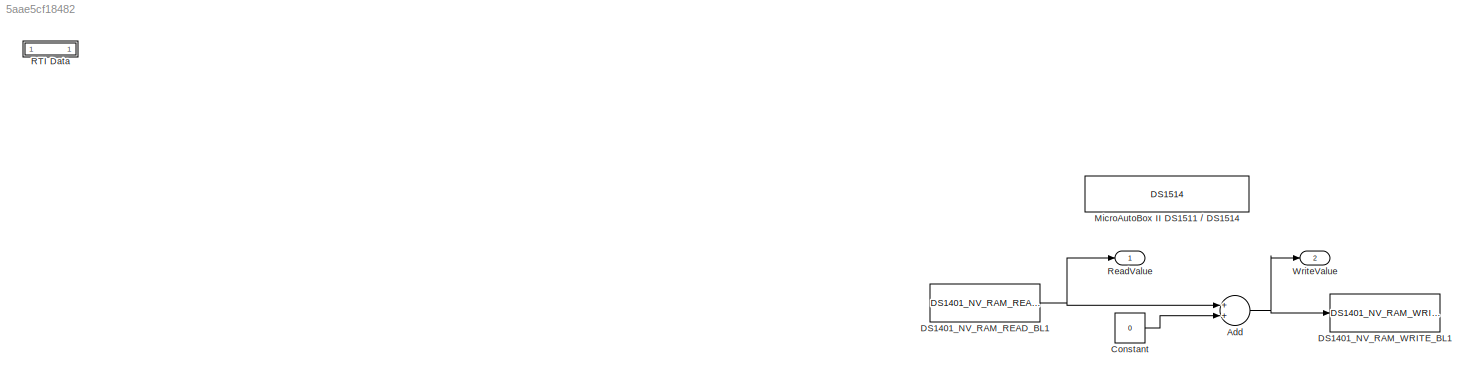
MODEL slx_5aae5cf18482
KIND model
CONFIG AbsTol = auto
CONFIG FixedStep = 0.001
CONFIG MaxStep = auto
CONFIG MinStep = auto
CONFIG PostLoadFcn = , if any(exist('dsrtsu_mdlpostloadfcn', 'file') == [2, 3, 6]), try dsrtsu_mdlpostloadfcn('Execute', bdroot); catch fprintf('Error in PostLoadFcn (dsrtsu_mdlpostloadfcn) for model "%s":\n %s\n', bdroot, lasterr); end, end, \n
CONFIG RelTol = 1e-3
CONFIG SampleTimeConstraint = Unconstrained
CONFIG Solver = ode1
CONFIG SolverMode = Auto
CONFIG SolverName = ode1
CONFIG StartTime = 0.0
CONFIG StopTime = Inf
BLOCK [Sum] Add
  InputSameDT = off
  OutDataTypeStr = int8
  Ports = [2, 1]
  SaturateOnIntegerOverflow = off
BLOCK [Constant] Constant
  Value = 0
BLOCK [Reference] DS1401_NV_RAM_READ_BL1  REF=rti1401lib_II_base/DS1401_NV_RAM_READ_BL1
  DSProperties = struct('RTI',struct('Version',uint32(1),'BlockType',struct('isSLSource',uint8(1),'isSLSink',uint8(0),'isHWSource',uint8(1),'isHWSink',uint8(0),'isSetup',uint8(0),'isInline',uint8(1),'isNonInline',uint8(0),'isInterrupt',uint8(0),'isChannelwise',uint8(0)),'IOBoardType',{{'DS1401','BASE','II'}},'UnitType','NVRAM','Identifier','NVRAMREAD','DialogType','ML','BlockSet','NONE','SlaveProcessor','NONE'))
  Ports = [0, 1]
  RTIBlockInterface = struct('OutputPortsWidth',int32(1),'OutputPortsActive',1,'OutputPortsDataType',{{'SS_INT8'}},'OutputPortsName',{{[' ']}},'BlockDisplay',{{['Read from\nnon-volatile RAM'],'center'}},'IconTransparency','on','InitLevel',3,'SampleTime',{{1}},'DialogFcn','rti1401baseiinvramreadgui','BlockName',struct('Token',{{'DS1401_NV_RAM_READ_BL1'}}))
  RTIBlockParaDefault = struct('DataType',8,'RAMAddress',0,'SampleTime',-1,'TLCFileName','rti1401base_II_nvram_read')
  RTIBlockParameters = struct('DataType',{{1,'OFF',[1 8]}},'RAMAddress',{{'1','OFF',[0 4095]}},'SampleTime',{{'1','OFF',[-1 inf]}},'TLCFileName',{{'rti1401base_II_nvram_read','OFF',[]}})
  RTISFcnParameters = struct('DataType','int16','RAMAddress','uint32','TLCFileName','char')
  SourceBlock = rti1401lib_II_base/DS1401_NV_RAM_READ_BL1
  SourceType = RTI
BLOCK [Reference] DS1401_NV_RAM_WRITE_BL1  REF=rti1401lib_II_base/DS1401_NV_RAM_WRITE_BL1
  DSProperties = struct('RTI',struct('Version',uint32(1),'BlockType',struct('isSLSource',uint8(0),'isSLSink',uint8(1),'isHWSource',uint8(0),'isHWSink',uint8(1),'isSetup',uint8(0),'isInline',uint8(1),'isNonInline',uint8(0),'isInterrupt',uint8(0),'isChannelwise',uint8(0)),'IOBoardType',{{'DS1401','BASE','II'}},'UnitType','NVRAM','Identifier','NVRAMWRITE','DialogType','ML','BlockSet','NONE','SlaveProcessor','NONE'))
  Ports = [1]
  RTIBlockInterface = struct('InputPortsWidth',int32(1),'InputPortsActive',1,'InputPortsDataType',{{'SS_INT8'}},'InputPortsName',{{[' ']}},'BlockDisplay',{{['Write to\nnon-volatile RAM'],'center'}},'IconTransparency','on','InitLevel',3,'SampleTime',{{1}},'DialogFcn','rti1401baseiinvramwritegui','BlockName',struct('Token',{{'DS1401_NV_RAM_WRITE_BL1'}}))
  RTIBlockParaDefault = struct('DataType',8,'RAMAddress',0,'SampleTime',-1,'TLCFileName','rti1401base_II_nvram_write')
  RTIBlockParameters = struct('DataType',{{1,'OFF',[1 8]}},'RAMAddress',{{'1','OFF',[0 4095]}},'SampleTime',{{'1','OFF',[-1 inf]}},'TLCFileName',{{'rti1401base_II_nvram_write','OFF',[]}})
  RTISFcnParameters = struct('DataType','int16','RAMAddress','uint32','TLCFileName','char')
  SourceBlock = rti1401lib_II_base/DS1401_NV_RAM_WRITE_BL1
  SourceType = RTI
BLOCK [Reference] MicroAutoBox II DS1511 // DS1514  REF=rtilib1401/MicroAutoBox II DS1511 // DS1514
  FunctionWithSeparateData = off
  GeneratePreprocessorConditionals = off
  Ports = []
  ShowPortLabels = FromPortIcon
  SourceBlock = rtilib1401/MicroAutoBox II DS1511 // DS1514
  SourceType = DSBUTTON
  SystemSampleTime = -1
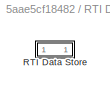
BLOCK [SubSystem] RTI Data
  CopyFcn = if exist('rtidc'), try,  rtidc('DataHostBlockClbCopy', gcbh); catch, disp(['Warning: ''CopyFcn'' for RTI Data block failed: ' lasterr]); end, end,
  DeleteFcn = if exist('rtidc'), try,  rtidc('DataHostBlockClbDelete', gcbh); catch, disp(['Warning: ''DeleteFcn'' for RTI Data block failed: ' lasterr]); end, end,
  LoadFcn = if exist('rtidc'), try,  rtidc('DataHostBlockClbLoad', gcbh); catch, disp(['Warning: ''LoadFcn'' for RTI Data block failed: ' lasterr]); end, end,
  ModelCloseFcn = if exist('rtidc'), try,  rtidc('DataHostBlockClbModelClose', gcbh); catch, disp(['Warning: ''ModelCloseFcn'' for RTI Data block failed: ' lasterr]); end, end,
  NameChangeFcn = if exist('rtidc'), try,  rtidc('DataHostBlockClbNameChange', gcbh); catch, disp(['Warning: ''NameChangeFcn'' for RTI Data block failed: ' lasterr]); end, end,
  Ports = []
  PostSaveFcn = if exist('rtidc'), try,  rtidc('DataHostBlockClbPostSave', gcbh); catch, disp(['Warning: ''PostSaveFcn'' for RTI Data block failed: ' lasterr]); end, end,
  PreSaveFcn = if exist('rtidc'), try,  rtidc('DataHostBlockClbPreSave', gcbh); catch, disp(['Warning: ''PreSaveFcn'' for RTI Data block failed: ' lasterr]); end, end,
  RequestExecContextInheritance = off
  Tag = struct('RTIDataServer',struct('RTIDataServerVs','2','RTIModelDescription','struct(''main'',''RAMTest'',''sub'','''',''isMp'',0)'))
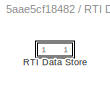
BLOCK [SubSystem] RTI Data/RTI Data Store
  Ports = []
  RequestExecContextInheritance = off
  Tag = struct('private',struct('version',struct('dsVer',uint32(2),'dsVerCreation',uint32(2),'RTI',struct('ver','7.5','type','RTI1401')),'access',struct('type','Model','isPerm',1,'created',['15-May-2016 19:17:43'],'modified',['15-May-2016 20:41:46'],'location','')),'public',struct('main',struct('data',[]),'sub',struct('name',{{'RAMTest'}},'data',{{struct('TH',struct('thTaskInfo',struct('taskType',{'TIMER'...<+1183ch>
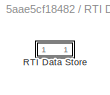
BLOCK [SubSystem] RTI Data/RTI Data Store/RTI Data Store
  Ports = []
  RequestExecContextInheritance = off
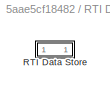
BLOCK [SubSystem] RTI Data/RTI Data Store/RTI Data Store/RTI Data Store
  Ports = []
  RequestExecContextInheritance = off
BLOCK [SubSystem] RTI Data/RTI Data Store/RTI Data Store/RTI Data Store/RTI Data Store
  Ports = []
  RequestExecContextInheritance = off
BLOCK [Outport] ReadValue
  IconDisplay = Port number
BLOCK [Outport] WriteValue
  IconDisplay = Port number
  Port = 2
NET Add:1 -> DS1401_NV_RAM_WRITE_BL1:1, WriteValue:1
LINE Constant:1 -> Add:2
NET DS1401_NV_RAM_READ_BL1:1 -> Add:1, ReadValue:1
note: NET lines group one-source signal fan-out (src -> all destinations, sorted); 1:1 wires keep LINE
